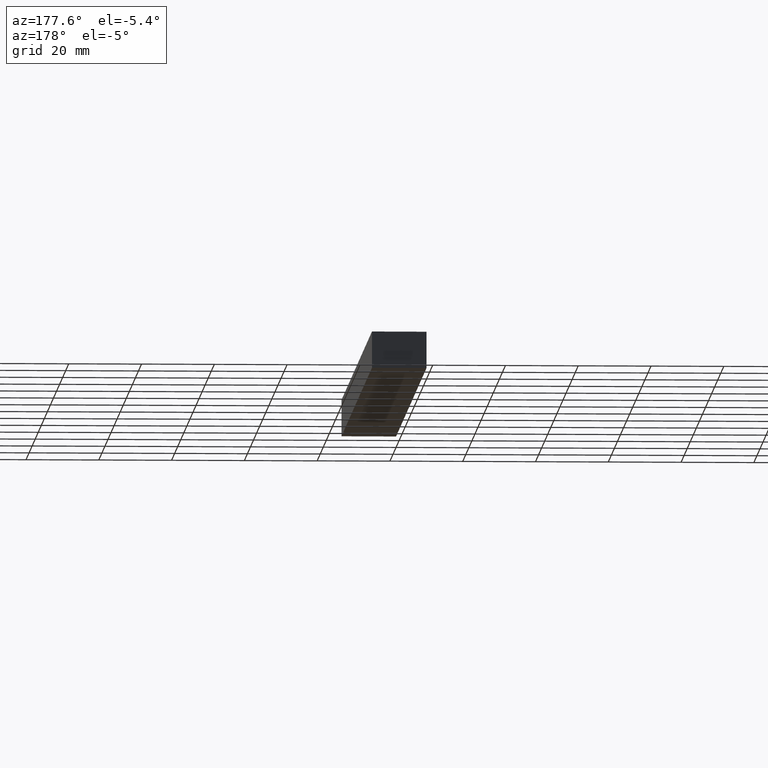
[diagram: clean part render]
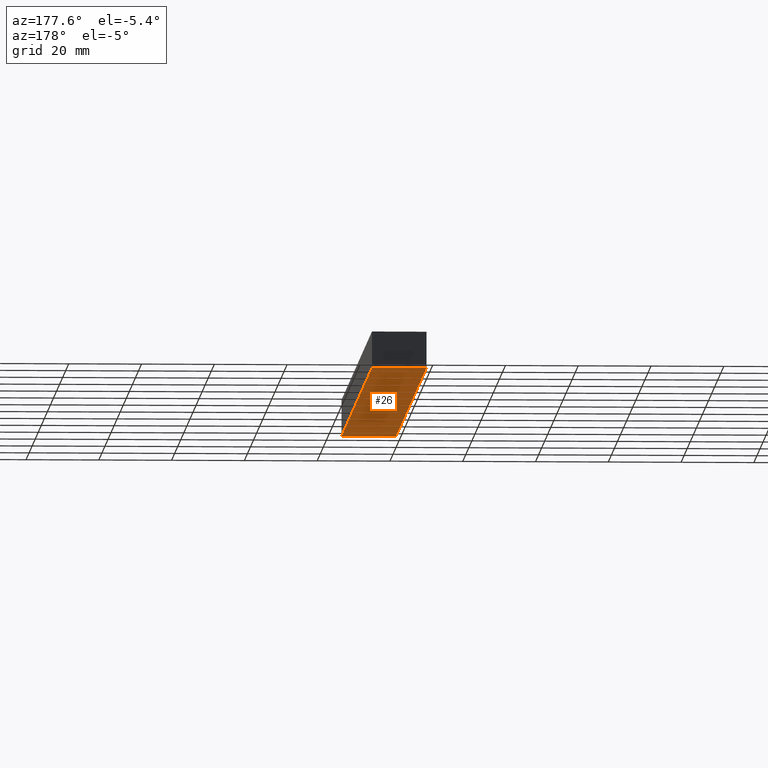
[diagram: same view with one face highlighted and labeled with its STEP entity id]
A machine part, auxiliary view. The second image highlights one B-rep face of the part: STEP entity #26.
In plain terms, the highlighted planar face has unit normal (0, 0, -1).
Its self-contained STEP definition (entity closure, byte-faithful):
#4 = EDGE_CURVE ( 'NONE', #197, #187, #140, .T. ) ;
#16 = CARTESIAN_POINT ( 'NONE',  ( 0.0000000000000000000, 200.0000000000000000, 0.0000000000000000000 ) ) ;
#24 = VECTOR ( 'NONE', #192, 1000.000000000000000 ) ;
#26 = ADVANCED_FACE ( 'NONE', ( #157 ), #90, .T. ) ;
#36 = VECTOR ( 'NONE', #136, 1000.000000000000000 ) ;
#38 = DIRECTION ( 'NONE',  ( 1.000000000000000000, -0.0000000000000000000, -0.0000000000000000000 ) ) ;
#45 = CARTESIAN_POINT ( 'NONE',  ( 0.0000000000000000000, 0.0000000000000000000, 0.0000000000000000000 ) ) ;
#56 = LINE ( 'NONE', #141, #108 ) ;
#57 = CARTESIAN_POINT ( 'NONE',  ( 0.0000000000000000000, 1000.000000000000000, 0.0000000000000000000 ) ) ;
#59 = VERTEX_POINT ( 'NONE', #211 ) ;
#75 = CARTESIAN_POINT ( 'NONE',  ( 15.00000000000000000, 200.0000000000000000, 0.0000000000000000000 ) ) ;
#88 = VERTEX_POINT ( 'NONE', #75 ) ;
#90 = PLANE ( 'NONE',  #181 ) ;
#100 = CARTESIAN_POINT ( 'NONE',  ( 0.0000000000000000000, 1000.000000000000000, 0.0000000000000000000 ) ) ;
#108 = VECTOR ( 'NONE', #116, 1000.000000000000000 ) ;
#109 = ORIENTED_EDGE ( 'NONE', *, *, #122, .T. ) ;
#113 = CARTESIAN_POINT ( 'NONE',  ( 15.00000000000000000, 1000.000000000000000, 0.0000000000000000000 ) ) ;
#116 = DIRECTION ( 'NONE',  ( 1.000000000000000000, -0.0000000000000000000, -0.0000000000000000000 ) ) ;
#118 = ORIENTED_EDGE ( 'NONE', *, *, #4, .F. ) ;
#122 = EDGE_CURVE ( 'NONE', #88, #59, #168, .T. ) ;
#136 = DIRECTION ( 'NONE',  ( 0.0000000000000000000, -1.000000000000000000, 0.0000000000000000000 ) ) ;
#138 = DIRECTION ( 'NONE',  ( -1.000000000000000000, 0.0000000000000000000, 0.0000000000000000000 ) ) ;
#140 = LINE ( 'NONE', #57, #24 ) ;
#141 = CARTESIAN_POINT ( 'NONE',  ( 0.0000000000000000000, 200.0000000000000000, 0.0000000000000000000 ) ) ;
#151 = DIRECTION ( 'NONE',  ( 0.0000000000000000000, 0.0000000000000000000, -1.000000000000000000 ) ) ;
#157 = FACE_OUTER_BOUND ( 'NONE', #222, .T. ) ;
#168 = LINE ( 'NONE', #113, #36 ) ;
#178 = ORIENTED_EDGE ( 'NONE', *, *, #191, .F. ) ;
#181 = AXIS2_PLACEMENT_3D ( 'NONE', #100, #151, #138 ) ;
#185 = EDGE_CURVE ( 'NONE', #197, #88, #56, .T. ) ;
#187 = VERTEX_POINT ( 'NONE', #45 ) ;
#191 = EDGE_CURVE ( 'NONE', #187, #59, #199, .T. ) ;
#192 = DIRECTION ( 'NONE',  ( 0.0000000000000000000, -1.000000000000000000, 0.0000000000000000000 ) ) ;
#197 = VERTEX_POINT ( 'NONE', #16 ) ;
#198 = ORIENTED_EDGE ( 'NONE', *, *, #185, .T. ) ;
#199 = LINE ( 'NONE', #207, #206 ) ;
#206 = VECTOR ( 'NONE', #38, 1000.000000000000000 ) ;
#207 = CARTESIAN_POINT ( 'NONE',  ( 0.0000000000000000000, 0.0000000000000000000, 0.0000000000000000000 ) ) ;
#211 = CARTESIAN_POINT ( 'NONE',  ( 15.00000000000000000, 0.0000000000000000000, 0.0000000000000000000 ) ) ;
#222 = EDGE_LOOP ( 'NONE', ( #178, #118, #198, #109 ) ) ;